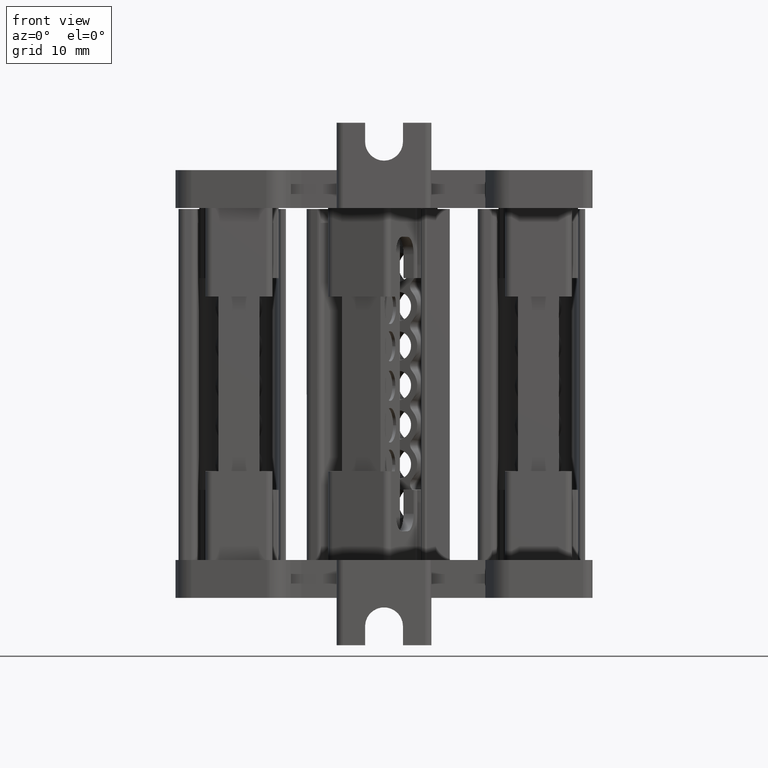
[diagram: clean part render]
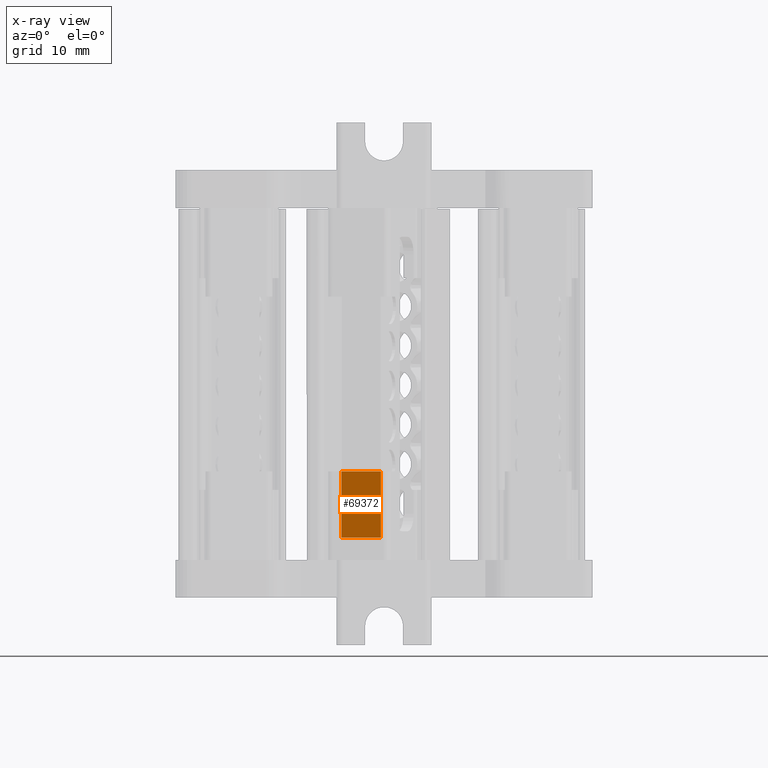
[diagram: x-ray — body ghosted, one internal face saturated and labeled with its STEP entity id]
A machine part, front view, then the same camera in x-ray: the body is ghosted and one INTERNAL B-rep face — a face not visible from any outside direction — is saturated and labeled: STEP entity #69372.
In plain terms, the highlighted planar face has unit normal (-0.342, -0.9397, 0).
Its self-contained STEP definition (entity closure, byte-faithful):
#6590 = DIRECTION ( 'NONE',  ( 0.9396929629877269800, -0.3420192031324355000, 0.0000000000000000000 ) ) ;
#6599 = DIRECTION ( 'NONE',  ( -0.3420192031324355600, -0.9396929629877270900, 0.0000000000000000000 ) ) ;
#6602 = FACE_OUTER_BOUND ( 'NONE', #78397, .T. ) ;
#6619 = CARTESIAN_POINT ( 'NONE',  ( -304.6686897275751600, 206.2441223605529200, 48.61326960368775500 ) ) ;
#6625 = PLANE ( 'NONE',  #23572 ) ;
#23572 = AXIS2_PLACEMENT_3D ( 'NONE', #6619, #6599, #6590 ) ;
#25910 = LINE ( 'NONE', #25940, #33316 ) ;
#25940 = CARTESIAN_POINT ( 'NONE',  ( -298.3908377496268800, 203.9591782187404200, 48.61326960368775500 ) ) ;
#26016 = DIRECTION ( 'NONE',  ( 0.0000000000000000000, 0.0000000000000000000, 1.000000000000000000 ) ) ;
#26854 = LINE ( 'NONE', #26903, #33211 ) ;
#26903 = CARTESIAN_POINT ( 'NONE',  ( -304.6686897275751600, 206.2441223605529200, 48.61326960368775500 ) ) ;
#26952 = DIRECTION ( 'NONE',  ( -0.0000000000000000000, -0.0000000000000000000, -1.000000000000000000 ) ) ;
#29850 = VECTOR ( 'NONE', #47728, 999.9999999999998900 ) ;
#29943 = VECTOR ( 'NONE', #47857, 999.9999999999998900 ) ;
#33211 = VECTOR ( 'NONE', #26952, 1000.000000000000000 ) ;
#33316 = VECTOR ( 'NONE', #26016, 1000.000000000000000 ) ;
#36685 = VERTEX_POINT ( 'NONE', #85465 ) ;
#36702 = VERTEX_POINT ( 'NONE', #85489 ) ;
#36708 = VERTEX_POINT ( 'NONE', #85477 ) ;
#36715 = VERTEX_POINT ( 'NONE', #85459 ) ;
#47714 = LINE ( 'NONE', #47723, #29850 ) ;
#47723 = CARTESIAN_POINT ( 'NONE',  ( -304.6686897275751600, 206.2441223605529200, 58.63149045965981500 ) ) ;
#47728 = DIRECTION ( 'NONE',  ( 0.9396929629877335300, -0.3420192031324180100, 1.038640253915487600E-015 ) ) ;
#47857 = DIRECTION ( 'NONE',  ( 0.9396929629877335300, -0.3420192031324180100, 2.077280507830975300E-015 ) ) ;
#47859 = LINE ( 'NONE', #47870, #29943 ) ;
#47870 = CARTESIAN_POINT ( 'NONE',  ( -304.6686897275751600, 206.2441223605529200, 48.14122990646644200 ) ) ;
#69372 = ADVANCED_FACE ( 'NONE', ( #6602 ), #6625, .F. ) ;
#70978 = EDGE_CURVE ( 'NONE', #36708, #36685, #26854, .T. ) ;
#71091 = EDGE_CURVE ( 'NONE', #36715, #36702, #25910, .T. ) ;
#72291 = EDGE_CURVE ( 'NONE', #36708, #36702, #47714, .T. ) ;
#72335 = EDGE_CURVE ( 'NONE', #36685, #36715, #47859, .T. ) ;
#78397 = EDGE_LOOP ( 'NONE', ( #83417, #83427, #83477, #83405 ) ) ;
#83405 = ORIENTED_EDGE ( 'NONE', *, *, #72335, .F. ) ;
#83417 = ORIENTED_EDGE ( 'NONE', *, *, #70978, .F. ) ;
#83427 = ORIENTED_EDGE ( 'NONE', *, *, #72291, .T. ) ;
#83477 = ORIENTED_EDGE ( 'NONE', *, *, #71091, .F. ) ;
#85459 = CARTESIAN_POINT ( 'NONE',  ( -298.3908377496268300, 203.9591782187405300, 48.14122990646645000 ) ) ;
#85465 = CARTESIAN_POINT ( 'NONE',  ( -304.6686897275751600, 206.2441223605529800, 48.14122990646644200 ) ) ;
#85477 = CARTESIAN_POINT ( 'NONE',  ( -304.6686897275751600, 206.2441223605529800, 58.63149045965980100 ) ) ;
#85489 = CARTESIAN_POINT ( 'NONE',  ( -298.3908377496268300, 203.9591782187405300, 58.63149045965980800 ) ) ;